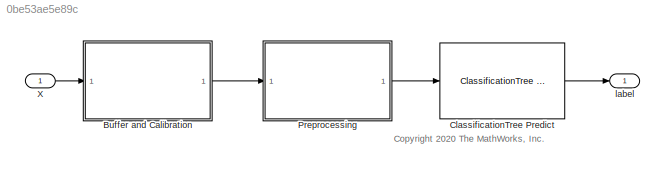
MODEL slx_0be53ae5e89c
KIND model
CONFIG AbsTol = auto
CONFIG EnableMultiTasking = off
CONFIG FixedStep = 1
CONFIG MaxStep = auto
CONFIG MinStep = auto
CONFIG PreLoadFcn = % Pre-processing parameters\ns = [1.0000   -1.0000         0    1.0000   -0.9004         0\n    1.0000   -1.9996    1.0000    1.0000   -1.9203    0.9254\n    1.0000   -1.9990    1.0000    1.0000   -1.9762    0.9791\n    1.0000   -1.9986    1.0000    1.0000   -1.9929    0.9953];\n\nfs = 10;\ng = 0.9013;\nfeatsDT = single(1);\nlags = (0:32)';\ntc = (1/fs)*lags;
CONFIG RelTol = 1e-3
CONFIG SampleTimeConstraint = Unconstrained
CONFIG SolverName = FixedStepAuto
CONFIG StartTime = 0.0
CONFIG StopTime = numSteps
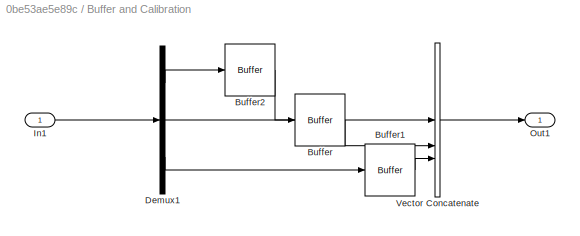
BLOCK [SubSystem] Buffer and Calibration
BLOCK [Buffer] Buffer and Calibration/Buffer
  N = 32
  OutputFrames = off
  V = 12
BLOCK [Buffer] Buffer and Calibration/Buffer1
  N = 32
  OutputFrames = off
  V = 12
BLOCK [Buffer] Buffer and Calibration/Buffer2
  N = 32
  OutputFrames = off
  V = 12
BLOCK [Demux] Buffer and Calibration/Demux1
  Outputs = 3
BLOCK [Inport] Buffer and Calibration/In1
BLOCK [Outport] Buffer and Calibration/Out1
BLOCK [Concatenate] Buffer and Calibration/Vector Concatenate
  ConcatenateDimension = 2
  Mode = Multidimensional array
  NumInputs = 3
BLOCK [Reference] ClassificationTree Predict  REF=statsLibrary/Classification/ClassificationTree Predict
  SourceBlock = statsLibrary/Classification/ClassificationTree Predict
  SourceType = ClassificationTree Predict
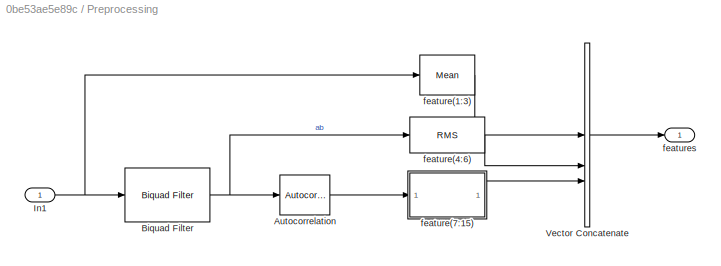
BLOCK [SubSystem] Preprocessing
BLOCK [Reference] Preprocessing/Autocorrelation  REF=dspstat3/Autocorrelation
  SourceBlock = dspstat3/Autocorrelation
  SourceType = Autocorrelation
BLOCK [Reference] Preprocessing/Biquad Filter  REF=dsparch4/Biquad Filter
  SourceBlock = dsparch4/Biquad Filter
  SourceType = Biquad Filter
  UserDataPersistent = on
BLOCK [Inport] Preprocessing/In1
BLOCK [Concatenate] Preprocessing/Vector Concatenate
  NumInputs = 3
BLOCK [Reference] Preprocessing/feature(1:3)  REF=dspstat3/Mean
  SourceBlock = dspstat3/Mean
  SourceType = Mean
  UserDataPersistent = on
BLOCK [Reference] Preprocessing/feature(4:6)  REF=dspstat3/RMS
  SourceBlock = dspstat3/RMS
  SourceType = RMS
  UserDataPersistent = on
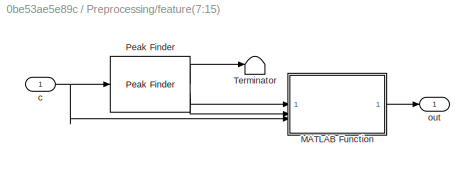
BLOCK [SubSystem] Preprocessing/feature(7:15)
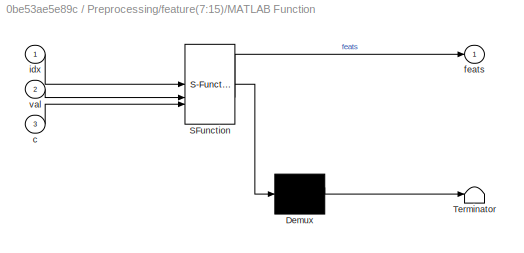
BLOCK [SubSystem] Preprocessing/feature(7:15)/MATLAB Function
  ErrorFcn = Stateflow.Translate.translate
  PermitHierarchicalResolution = ExplicitOnly
  SFBlockType = MATLAB Function
  TreatAsAtomicUnit = on
BLOCK [Demux] Preprocessing/feature(7:15)/MATLAB Function/ Demux 
  Outputs = 1
BLOCK [S-Function] Preprocessing/feature(7:15)/MATLAB Function/ SFunction 
  EnableBusSupport = off
  FunctionName = sf_sfun
  Parameters = tc
  PortCounts = [3 2]
  SFcnIsStateOwnerBlock = off
  SFunctionDeploymentMode = off
  Tag = Stateflow S-Function 2
BLOCK [Terminator] Preprocessing/feature(7:15)/MATLAB Function/ Terminator 
BLOCK [Inport] Preprocessing/feature(7:15)/MATLAB Function/c
  Port = 3
BLOCK [Outport] Preprocessing/feature(7:15)/MATLAB Function/feats
BLOCK [Inport] Preprocessing/feature(7:15)/MATLAB Function/idx
BLOCK [Inport] Preprocessing/feature(7:15)/MATLAB Function/val
  Port = 2
BLOCK [Reference] Preprocessing/feature(7:15)/Peak Finder  REF=dspsigops/Peak Finder
  SourceBlock = dspsigops/Peak Finder
  SourceType = Peak Finder
BLOCK [Terminator] Preprocessing/feature(7:15)/Terminator
BLOCK [Inport] Preprocessing/feature(7:15)/c
BLOCK [Outport] Preprocessing/feature(7:15)/out
BLOCK [Outport] Preprocessing/features
BLOCK [Inport] X
  OutDataTypeStr = double
  PortDimensions = [1,3]
  SampleTime = 1
BLOCK [Outport] label
ANNOTATION (root): <copyright redacted>
LINE Buffer and Calibration/Buffer1:1 -> Buffer and Calibration/Vector Concatenate:3
LINE Buffer and Calibration/Buffer2:1 -> Buffer and Calibration/Vector Concatenate:1
LINE Buffer and Calibration/Buffer:1 -> Buffer and Calibration/Vector Concatenate:2
LINE Buffer and Calibration/Demux1:1 -> Buffer and Calibration/Buffer2:1
LINE Buffer and Calibration/Demux1:2 -> Buffer and Calibration/Buffer:1
LINE Buffer and Calibration/Demux1:3 -> Buffer and Calibration/Buffer1:1
LINE Buffer and Calibration/In1:1 -> Buffer and Calibration/Demux1:1
LINE Buffer and Calibration/Vector Concatenate:1 -> Buffer and Calibration/Out1:1
LINE Buffer and Calibration:1 -> Preprocessing:1
LINE ClassificationTree Predict:1 -> label:1
LINE Preprocessing/Autocorrelation:1 -> Preprocessing/feature(7:15):1
NET Preprocessing/Biquad Filter:1 -> Preprocessing/Autocorrelation:1, Preprocessing/feature(4:6):1
NET Preprocessing/In1:1 -> Preprocessing/Biquad Filter:1, Preprocessing/feature(1:3):1
LINE Preprocessing/Vector Concatenate:1 -> Preprocessing/features:1
LINE Preprocessing/feature(1:3):1 -> Preprocessing/Vector Concatenate:1
LINE Preprocessing/feature(4:6):1 -> Preprocessing/Vector Concatenate:2
LINE Preprocessing/feature(7:15)/MATLAB Function:1 -> Preprocessing/feature(7:15)/out:1
LINE Preprocessing/feature(7:15)/Peak Finder:1 -> Preprocessing/feature(7:15)/Terminator:1
LINE Preprocessing/feature(7:15)/Peak Finder:2 -> Preprocessing/feature(7:15)/MATLAB Function:1
LINE Preprocessing/feature(7:15)/Peak Finder:3 -> Preprocessing/feature(7:15)/MATLAB Function:2
NET Preprocessing/feature(7:15)/c:1 -> Preprocessing/feature(7:15)/MATLAB Function:3, Preprocessing/feature(7:15)/Peak Finder:1
LINE Preprocessing/feature(7:15):1 -> Preprocessing/Vector Concatenate:3
LINE Preprocessing:1 -> ClassificationTree Predict:1
LINE X:1 -> Buffer and Calibration:1
note: NET lines group one-source signal fan-out (src -> all destinations, sorted); 1:1 wires keep LINE
CHART Preprocessing/feature(7:15)/MATLAB Function states=1 transitions=1
  STATE_LABEL 'eML_blk_kernel()'
  STATE_LABEL "SCRIPT:\nfunction feats = fcn(idx,val,c,tc)\nfeats = zeros(9,1,'like',val);\nfor k = 1:3\n%     [pks,locs] = findpeaks([0;c(:,k)],...\n%         'minpeakprominence',minprom,...\n%         'minpeakdistance',minpkdist);\n    nzInds = idx(:,k)>0;\n    locs = idx(nzInds,k);\n    pks = val(nzInds,k);\n    \n    tcl = tc(locs);\n\n    % Feature 1 - peak height at 0\n    feats(3*(k-1)+1) = c(1,k);\n    % Features 2 and...<+171ch>"
CHART  states=0 transitions=0
